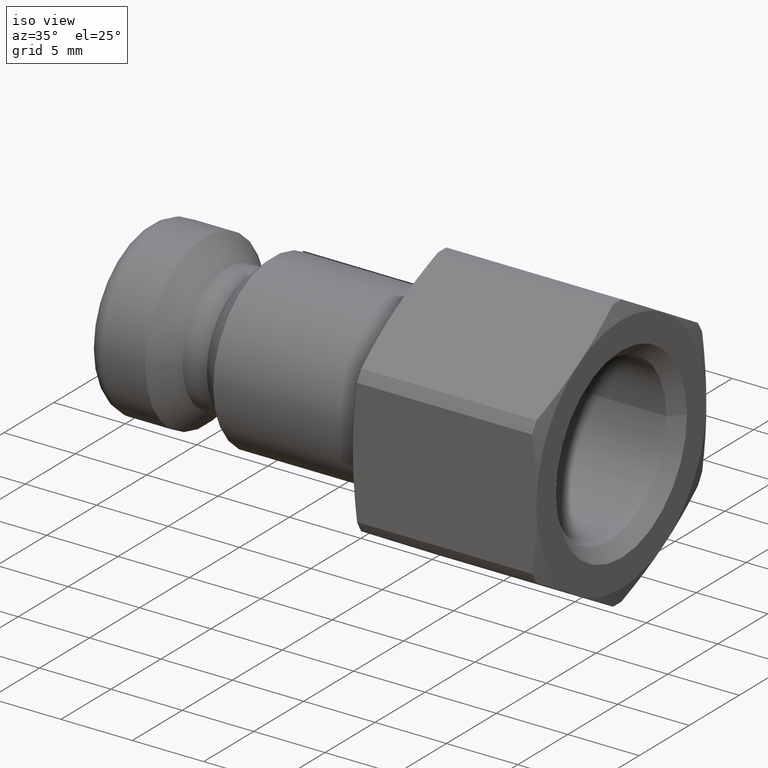
[diagram: clean part render]
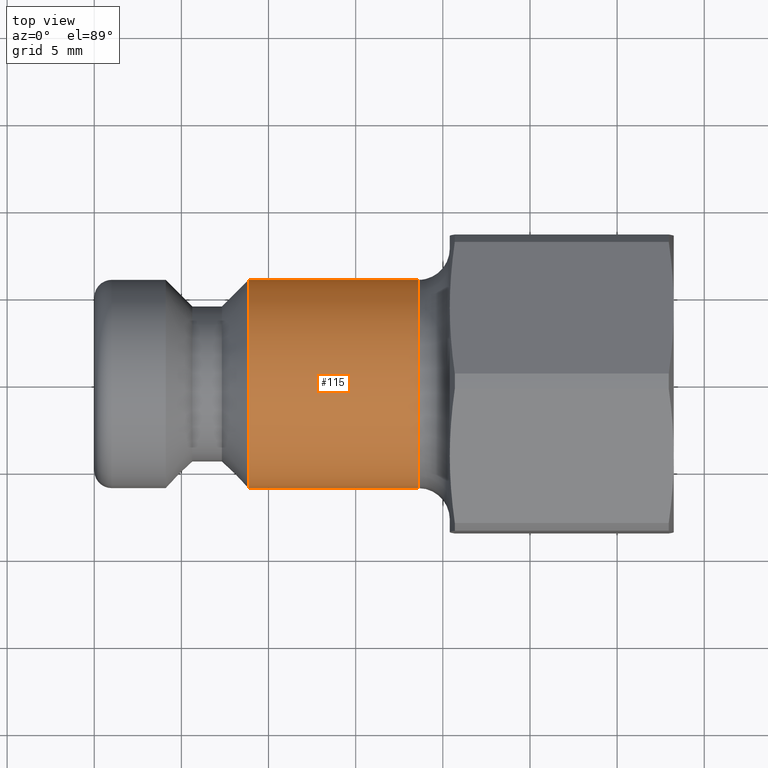
[diagram: tour spotlight — one face highlighted and labeled with its STEP entity id]
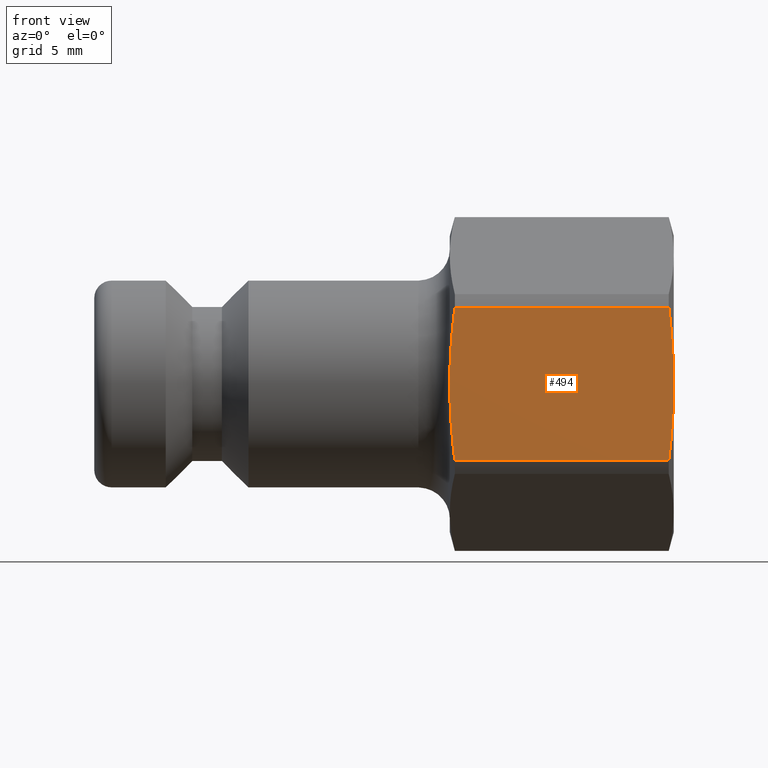
[diagram: tour spotlight — one face highlighted and labeled with its STEP entity id]
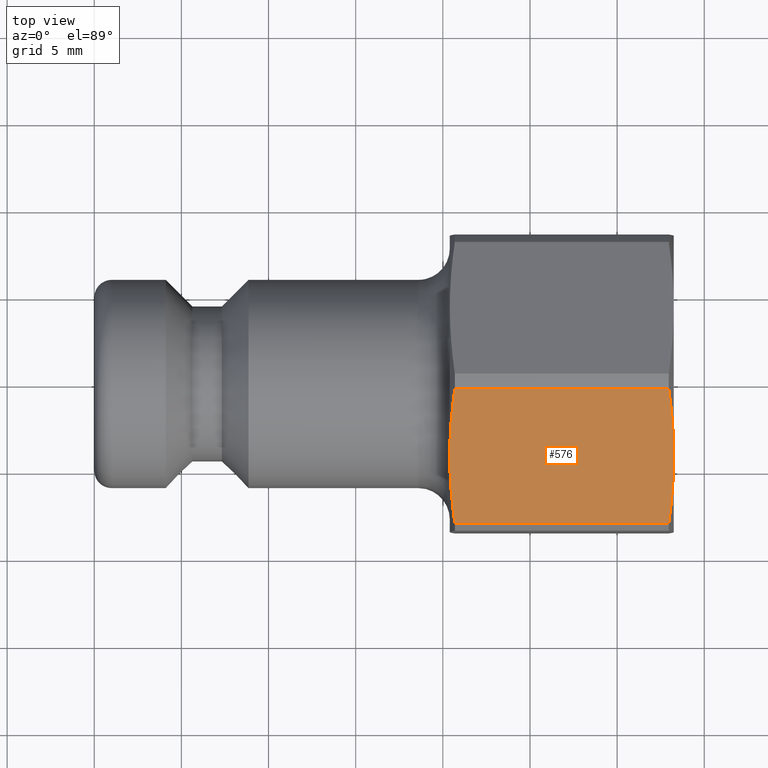
[diagram: tour spotlight — one face highlighted and labeled with its STEP entity id]
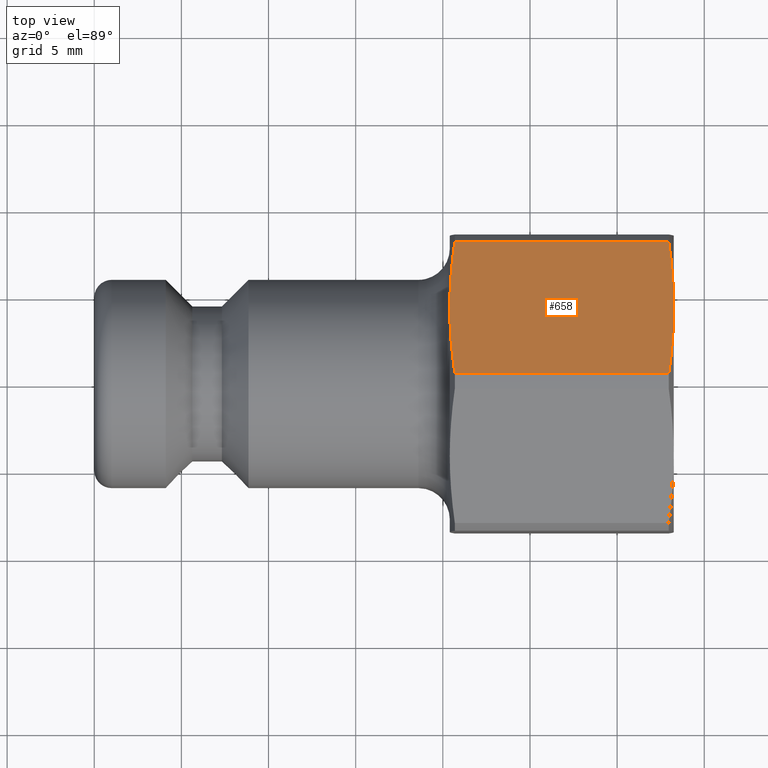
[diagram: tour spotlight — one face highlighted and labeled with its STEP entity id]
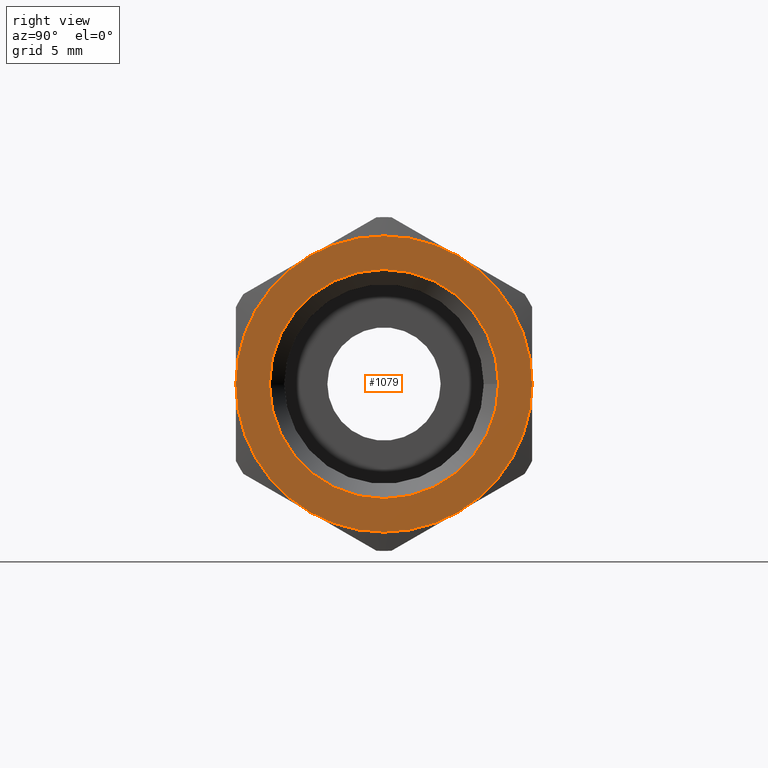
[diagram: tour spotlight — one face highlighted and labeled with its STEP entity id]
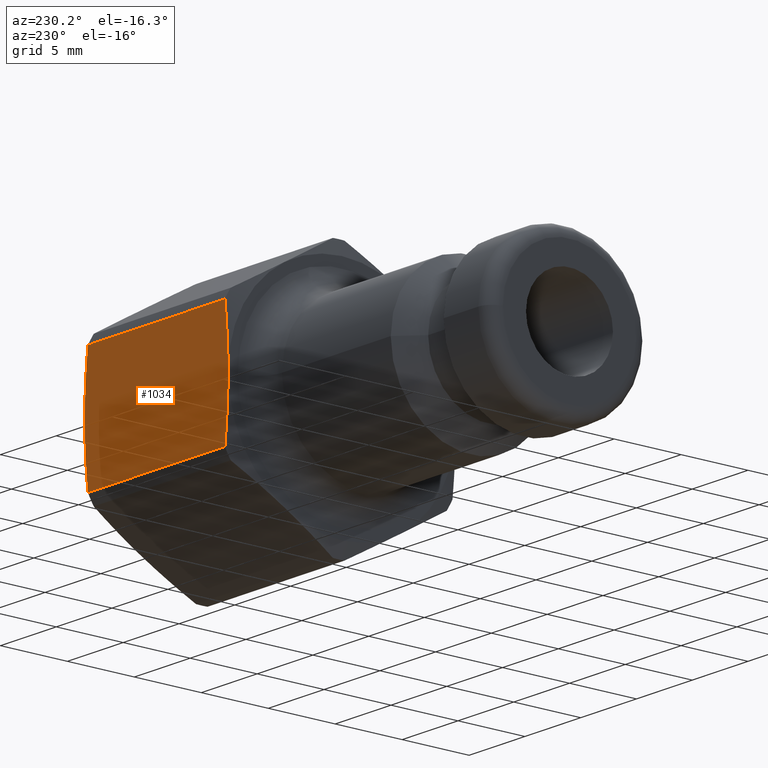
[diagram: tour spotlight — one face highlighted and labeled with its STEP entity id]
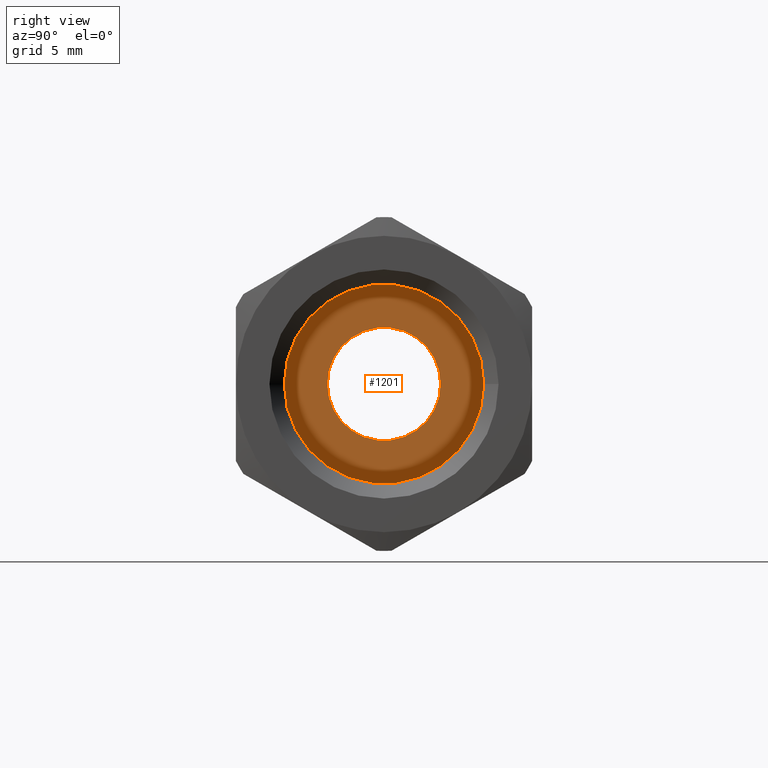
[diagram: tour spotlight — one face highlighted and labeled with its STEP entity id]
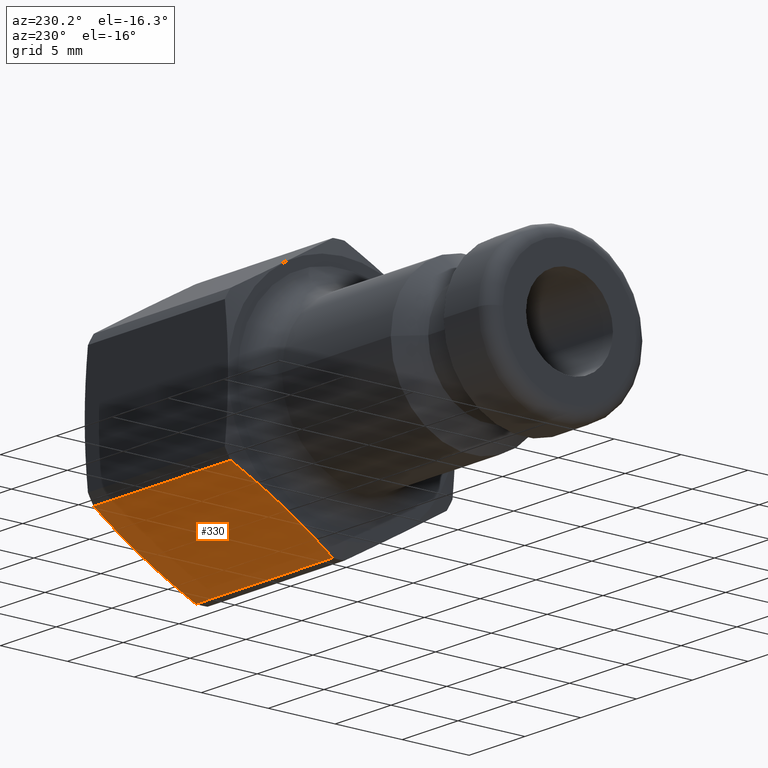
[diagram: tour spotlight — one face highlighted and labeled with its STEP entity id]
A machine part: a face-by-face anatomy tour. The part has 38 B-rep faces; the first image is the clean iso view, then the 8 largest visible faces are spotlighted one at a time (largest first), each with its STEP entity span.

Face 1 — top view, entity #115. In plain terms, the highlighted cylindrical surface (bore or boss wall) has radius 5.975 mm, axis along (1, 0, 0).
Definition (entity closure, byte-faithful):
#73=CARTESIAN_POINT('',(18.600000000000001,5.975000000000001,0.0));
#74=VERTEX_POINT('',#73);
#75=CARTESIAN_POINT('',(18.600000000000001,0.0,0.0));
#76=DIRECTION('',(1.0,0.0,0.0));
#77=DIRECTION('',(0.0,-1.0,0.0));
#78=AXIS2_PLACEMENT_3D('',#75,#76,#77);
#79=CIRCLE('',#78,5.975000000000001);
#80=EDGE_CURVE('',#74,#74,#79,.T.);
#96=CARTESIAN_POINT('',(14.625000000000000,0.0,0.0));
#97=DIRECTION('',(1.0,0.0,0.0));
#98=DIRECTION('',(0.0,1.0,0.0));
#99=AXIS2_PLACEMENT_3D('',#96,#97,#98);
#100=CYLINDRICAL_SURFACE('',#99,5.975000000000001);
#101=CARTESIAN_POINT('',(8.849999999999998,5.975000000000001,0.0));
#102=VERTEX_POINT('',#101);
#103=CARTESIAN_POINT('',(8.849999999999998,0.0,0.0));
#104=DIRECTION('',(1.0,0.0,0.0));
#105=DIRECTION('',(0.0,1.0,0.0));
#106=AXIS2_PLACEMENT_3D('',#103,#104,#105);
#107=CIRCLE('',#106,5.975000000000001);
#108=EDGE_CURVE('',#102,#102,#107,.T.);
#109=ORIENTED_EDGE('',*,*,#108,.T.);
#110=EDGE_LOOP('',(#109));
#111=FACE_OUTER_BOUND('',#110,.T.);
#112=ORIENTED_EDGE('',*,*,#80,.F.);
#113=EDGE_LOOP('',(#112));
#114=FACE_BOUND('',#113,.T.);
#115=ADVANCED_FACE('',(#111,#114),#100,.T.);

Face 2 — front view, entity #494. In plain terms, the highlighted planar face has unit normal (0, 1, 0).
Definition (entity closure, byte-faithful):
#150=CARTESIAN_POINT('',(20.399999999999999,-8.500000000000000,1.415534E-015));
#151=VERTEX_POINT('',#150);
#413=CARTESIAN_POINT('',(34.482762852840338,-8.500000000000000,1.110223E-015));
#414=DIRECTION('',(0.0,1.0,0.0));
#415=DIRECTION('',(0.0,0.0,1.0));
#416=AXIS2_PLACEMENT_3D('',#413,#414,#415);
#417=PLANE('',#416);
#418=CARTESIAN_POINT('',(20.688045381863454,-8.500000000000002,-4.408018262212622));
#419=VERTEX_POINT('',#418);
#420=CARTESIAN_POINT('',(20.688045381863454,-8.500000000000002,-4.408018262212659));
#421=CARTESIAN_POINT('',(20.400000000000009,-8.500000000000000,-2.072926983613210));
#422=CARTESIAN_POINT('',(20.400000000000006,-8.500000000000000,1.415534E-015));
#430=(BOUNDED_CURVE()B_SPLINE_CURVE(2,(#420,#421,#422),.UNSPECIFIED.,.F.,.U.)B_SPLINE_CURVE_WITH_KNOTS((3,3),(0.0,0.441955310884675),.UNSPECIFIED.)CURVE()GEOMETRIC_REPRESENTATION_ITEM()RATIONAL_B_SPLINE_CURVE((1.0,1.031133014754920,1.0))REPRESENTATION_ITEM(''));
#431=EDGE_CURVE('',#419,#151,#430,.T.);
#432=ORIENTED_EDGE('',*,*,#431,.F.);
#433=CARTESIAN_POINT('',(32.961954618136538,-8.500000000000002,-4.408018262212622));
#434=VERTEX_POINT('',#433);
#435=CARTESIAN_POINT('',(32.961954618136545,-8.500000000000002,-4.408018262212622));
#436=DIRECTION('',(-1.0,0.0,0.0));
#437=VECTOR('',#436,12.273909236273091);
#438=LINE('',#435,#437);
#439=EDGE_CURVE('',#434,#419,#438,.T.);
#440=ORIENTED_EDGE('',*,*,#439,.F.);
#441=CARTESIAN_POINT('',(33.250000000000000,-8.500000000000000,1.415534E-015));
#442=VERTEX_POINT('',#441);
#443=CARTESIAN_POINT('',(33.250000000000000,-8.500000000000000,1.415534E-015));
#444=CARTESIAN_POINT('',(33.250000000000000,-8.500000000000000,-2.072926983613113));
#445=CARTESIAN_POINT('',(32.961954618136538,-8.500000000000002,-4.408018262212622));
#453=(BOUNDED_CURVE()B_SPLINE_CURVE(2,(#443,#444,#445),.UNSPECIFIED.,.F.,.U.)B_SPLINE_CURVE_WITH_KNOTS((3,3),(0.441955310884671,0.883910621769342),.UNSPECIFIED.)CURVE()GEOMETRIC_REPRESENTATION_ITEM()RATIONAL_B_SPLINE_CURVE((1.0,1.031133014755003,1.0))REPRESENTATION_ITEM(''));
#454=EDGE_CURVE('',#442,#434,#453,.T.);
#455=ORIENTED_EDGE('',*,*,#454,.F.);
#456=CARTESIAN_POINT('',(32.961954618136538,-8.500000000000000,4.408018262212624));
#457=VERTEX_POINT('',#456);
#458=CARTESIAN_POINT('',(32.961954618136538,-8.500000000000000,4.408018262212624));
#459=CARTESIAN_POINT('',(33.250000000000000,-8.500000000000000,2.072926983613151));
#460=CARTESIAN_POINT('',(33.250000000000000,-8.500000000000000,1.415534E-015));
#468=(BOUNDED_CURVE()B_SPLINE_CURVE(2,(#458,#459,#460),.UNSPECIFIED.,.F.,.U.)B_SPLINE_CURVE_WITH_KNOTS((3,3),(0.0,0.441955310884671),.UNSPECIFIED.)CURVE()GEOMETRIC_REPRESENTATION_ITEM()RATIONAL_B_SPLINE_CURVE((1.0,1.031133014754911,1.0))REPRESENTATION_ITEM(''));
#469=EDGE_CURVE('',#457,#442,#468,.T.);
#470=ORIENTED_EDGE('',*,*,#469,.F.);
#471=CARTESIAN_POINT('',(20.688045381863454,-8.500000000000000,4.408018262212624));
#472=VERTEX_POINT('',#471);
#473=CARTESIAN_POINT('',(20.688045381863454,-8.500000000000000,4.408018262212624));
#474=DIRECTION('',(1.0,0.0,0.0));
#475=VECTOR('',#474,12.273909236273091);
#476=LINE('',#473,#475);
#477=EDGE_CURVE('',#472,#457,#476,.T.);
#478=ORIENTED_EDGE('',*,*,#477,.F.);
#479=CARTESIAN_POINT('',(20.400000000000006,-8.500000000000000,1.415534E-015));
#480=CARTESIAN_POINT('',(20.399999999999999,-8.500000000000000,2.072926983613213));
#481=CARTESIAN_POINT('',(20.688045381863454,-8.500000000000000,4.408018262212662));
#489=(BOUNDED_CURVE()B_SPLINE_CURVE(2,(#479,#480,#481),.UNSPECIFIED.,.F.,.U.)B_SPLINE_CURVE_WITH_KNOTS((3,3),(0.441955310884675,0.883910621769349),.UNSPECIFIED.)CURVE()GEOMETRIC_REPRESENTATION_ITEM()RATIONAL_B_SPLINE_CURVE((1.0,1.031133014754911,1.0))REPRESENTATION_ITEM(''));
#490=EDGE_CURVE('',#151,#472,#489,.T.);
#491=ORIENTED_EDGE('',*,*,#490,.F.);
#492=EDGE_LOOP('',(#432,#440,#455,#470,#478,#491));
#493=FACE_OUTER_BOUND('',#492,.T.);
#494=ADVANCED_FACE('',(#493),#417,.F.);

Face 3 — top view, entity #576. In plain terms, the highlighted planar face has unit normal (0, 0.5, -0.866).
Definition (entity closure, byte-faithful):
#159=CARTESIAN_POINT('',(20.399999999999999,-4.249999999999998,7.361215932167731));
#160=VERTEX_POINT('',#159);
#495=CARTESIAN_POINT('',(34.482762852840338,-4.249999999999998,7.361215932167731));
#496=DIRECTION('',(0.0,0.500000000000000,-0.866025403784439));
#497=DIRECTION('',(0.0,0.866025403784439,0.500000000000000));
#498=AXIS2_PLACEMENT_3D('',#495,#496,#497);
#499=PLANE('',#498);
#500=CARTESIAN_POINT('',(20.688045381863454,-8.067455795421864,5.157206801061420));
#501=VERTEX_POINT('',#500);
#502=CARTESIAN_POINT('',(20.688045381863454,-8.067455795421896,5.157206801061403));
#503=CARTESIAN_POINT('',(20.400000000000009,-6.045207427999292,6.324752440361124));
#504=CARTESIAN_POINT('',(20.400000000000006,-4.249999999999998,7.361215932167731));
#512=(BOUNDED_CURVE()B_SPLINE_CURVE(2,(#502,#503,#504),.UNSPECIFIED.,.F.,.U.)B_SPLINE_CURVE_WITH_KNOTS((3,3),(0.0,0.441955310884674),.UNSPECIFIED.)CURVE()GEOMETRIC_REPRESENTATION_ITEM()RATIONAL_B_SPLINE_CURVE((1.0,1.031133014754906,1.0))REPRESENTATION_ITEM(''));
#513=EDGE_CURVE('',#501,#160,#512,.T.);
#514=ORIENTED_EDGE('',*,*,#513,.F.);
#515=CARTESIAN_POINT('',(32.961954618136538,-8.067455795421864,5.157206801061420));
#516=VERTEX_POINT('',#515);
#517=CARTESIAN_POINT('',(32.961954618136545,-8.067455795421864,5.157206801061420));
#518=DIRECTION('',(-1.0,0.0,0.0));
#519=VECTOR('',#518,12.273909236273091);
#520=LINE('',#517,#519);
#521=EDGE_CURVE('',#516,#501,#520,.T.);
#522=ORIENTED_EDGE('',*,*,#521,.F.);
#523=CARTESIAN_POINT('',(33.250000000000000,-4.249999999999998,7.361215932167731));
#524=VERTEX_POINT('',#523);
#525=CARTESIAN_POINT('',(33.250000000000000,-4.249999999999998,7.361215932167731));
#526=CARTESIAN_POINT('',(33.250000000000000,-6.045207427999228,6.324752440361161));
#527=CARTESIAN_POINT('',(32.961954618136538,-8.067455795421864,5.157206801061420));
#535=(BOUNDED_CURVE()B_SPLINE_CURVE(2,(#525,#526,#527),.UNSPECIFIED.,.F.,.U.)B_SPLINE_CURVE_WITH_KNOTS((3,3),(0.441955310884671,0.883910621769342),.UNSPECIFIED.)CURVE()GEOMETRIC_REPRESENTATION_ITEM()RATIONAL_B_SPLINE_CURVE((1.0,1.031133014754920,1.0))REPRESENTATION_ITEM(''));
#536=EDGE_CURVE('',#524,#516,#535,.T.);
#537=ORIENTED_EDGE('',*,*,#536,.F.);
#538=CARTESIAN_POINT('',(32.961954618136538,-0.432544204578131,9.565225063274042));
#539=VERTEX_POINT('',#538);
#540=CARTESIAN_POINT('',(32.961954618136538,-0.432544204578132,9.565225063274042));
#541=CARTESIAN_POINT('',(33.250000000000000,-2.454792572000761,8.397679423974305));
#542=CARTESIAN_POINT('',(33.250000000000000,-4.249999999999998,7.361215932167731));
#550=(BOUNDED_CURVE()B_SPLINE_CURVE(2,(#540,#541,#542),.UNSPECIFIED.,.F.,.U.)B_SPLINE_CURVE_WITH_KNOTS((3,3),(0.0,0.441955310884671),.UNSPECIFIED.)CURVE()GEOMETRIC_REPRESENTATION_ITEM()RATIONAL_B_SPLINE_CURVE((1.0,1.031133014754915,1.0))REPRESENTATION_ITEM(''));
#551=EDGE_CURVE('',#539,#524,#550,.T.);
#552=ORIENTED_EDGE('',*,*,#551,.F.);
#553=CARTESIAN_POINT('',(20.688045381863454,-0.432544204578131,9.565225063274042));
#554=VERTEX_POINT('',#553);
#555=CARTESIAN_POINT('',(20.688045381863454,-0.432544204578131,9.565225063274042));
#556=DIRECTION('',(1.0,0.0,0.0));
#557=VECTOR('',#556,12.273909236273091);
#558=LINE('',#555,#557);
#559=EDGE_CURVE('',#554,#539,#558,.T.);
#560=ORIENTED_EDGE('',*,*,#559,.F.);
#561=CARTESIAN_POINT('',(20.400000000000006,-4.249999999999998,7.361215932167731));
#562=CARTESIAN_POINT('',(20.399999999999999,-2.454792572000705,8.397679423974338));
#563=CARTESIAN_POINT('',(20.688045381863454,-0.432544204578101,9.565225063274060));
#571=(BOUNDED_CURVE()B_SPLINE_CURVE(2,(#561,#562,#563),.UNSPECIFIED.,.F.,.U.)B_SPLINE_CURVE_WITH_KNOTS((3,3),(0.441955310884674,0.883910621769349),.UNSPECIFIED.)CURVE()GEOMETRIC_REPRESENTATION_ITEM()RATIONAL_B_SPLINE_CURVE((1.0,1.031133014754906,1.0))REPRESENTATION_ITEM(''));
#572=EDGE_CURVE('',#160,#554,#571,.T.);
#573=ORIENTED_EDGE('',*,*,#572,.F.);
#574=EDGE_LOOP('',(#514,#522,#537,#552,#560,#573));
#575=FACE_OUTER_BOUND('',#574,.T.);
#576=ADVANCED_FACE('',(#575),#499,.F.);

Face 4 — top view, entity #658. In plain terms, the highlighted planar face has unit normal (0, -0.5, -0.866).
Definition (entity closure, byte-faithful):
#123=CARTESIAN_POINT('',(20.399999999999999,4.250000000000001,7.361215932167728));
#124=VERTEX_POINT('',#123);
#577=CARTESIAN_POINT('',(34.482762852840338,4.250000000000002,7.361215932167728));
#578=DIRECTION('',(0.0,-0.500000000000000,-0.866025403784439));
#579=DIRECTION('',(0.0,0.866025403784439,-0.500000000000000));
#580=AXIS2_PLACEMENT_3D('',#577,#578,#579);
#581=PLANE('',#580);
#582=CARTESIAN_POINT('',(20.688045381863454,0.432544204578135,9.565225063274042));
#583=VERTEX_POINT('',#582);
#584=CARTESIAN_POINT('',(20.688045381863454,0.432544204578103,9.565225063274060));
#585=CARTESIAN_POINT('',(20.400000000000009,2.454792572000702,8.397679423974340));
#586=CARTESIAN_POINT('',(20.400000000000006,4.250000000000002,7.361215932167728));
#594=(BOUNDED_CURVE()B_SPLINE_CURVE(2,(#584,#585,#586),.UNSPECIFIED.,.F.,.U.)B_SPLINE_CURVE_WITH_KNOTS((3,3),(0.0,0.441955310884675),.UNSPECIFIED.)CURVE()GEOMETRIC_REPRESENTATION_ITEM()RATIONAL_B_SPLINE_CURVE((1.0,1.031133014754910,1.0))REPRESENTATION_ITEM(''));
#595=EDGE_CURVE('',#583,#124,#594,.T.);
#596=ORIENTED_EDGE('',*,*,#595,.F.);
#597=CARTESIAN_POINT('',(32.961954618136538,0.432544204578135,9.565225063274042));
#598=VERTEX_POINT('',#597);
#599=CARTESIAN_POINT('',(32.961954618136545,0.432544204578135,9.565225063274042));
#600=DIRECTION('',(-1.0,0.0,0.0));
#601=VECTOR('',#600,12.273909236273091);
#602=LINE('',#599,#601);
#603=EDGE_CURVE('',#598,#583,#602,.T.);
#604=ORIENTED_EDGE('',*,*,#603,.F.);
#605=CARTESIAN_POINT('',(33.250000000000000,4.250000000000001,7.361215932167728));
#606=VERTEX_POINT('',#605);
#607=CARTESIAN_POINT('',(33.250000000000000,4.250000000000001,7.361215932167728));
#608=CARTESIAN_POINT('',(33.250000000000000,2.454792572000771,8.397679423974299));
#609=CARTESIAN_POINT('',(32.961954618136538,0.432544204578134,9.565225063274042));
#617=(BOUNDED_CURVE()B_SPLINE_CURVE(2,(#607,#608,#609),.UNSPECIFIED.,.F.,.U.)B_SPLINE_CURVE_WITH_KNOTS((3,3),(0.441955310884671,0.883910621769342),.UNSPECIFIED.)CURVE()GEOMETRIC_REPRESENTATION_ITEM()RATIONAL_B_SPLINE_CURVE((1.0,1.031133014754915,1.0))REPRESENTATION_ITEM(''));
#618=EDGE_CURVE('',#606,#598,#617,.T.);
#619=ORIENTED_EDGE('',*,*,#618,.F.);
#620=CARTESIAN_POINT('',(32.961954618136538,8.067455795421868,5.157206801061416));
#621=VERTEX_POINT('',#620);
#622=CARTESIAN_POINT('',(32.961954618136538,8.067455795421870,5.157206801061415));
#623=CARTESIAN_POINT('',(33.250000000000000,6.045207427999232,6.324752440361157));
#624=CARTESIAN_POINT('',(33.250000000000000,4.250000000000001,7.361215932167728));
#632=(BOUNDED_CURVE()B_SPLINE_CURVE(2,(#622,#623,#624),.UNSPECIFIED.,.F.,.U.)B_SPLINE_CURVE_WITH_KNOTS((3,3),(0.0,0.441955310884671),.UNSPECIFIED.)CURVE()GEOMETRIC_REPRESENTATION_ITEM()RATIONAL_B_SPLINE_CURVE((1.0,1.031133014754910,1.0))REPRESENTATION_ITEM(''));
#633=EDGE_CURVE('',#621,#606,#632,.T.);
#634=ORIENTED_EDGE('',*,*,#633,.F.);
#635=CARTESIAN_POINT('',(20.688045381863454,8.067455795421868,5.157206801061416));
#636=VERTEX_POINT('',#635);
#637=CARTESIAN_POINT('',(20.688045381863454,8.067455795421868,5.157206801061416));
#638=DIRECTION('',(1.0,0.0,0.0));
#639=VECTOR('',#638,12.273909236273091);
#640=LINE('',#637,#639);
#641=EDGE_CURVE('',#636,#621,#640,.T.);
#642=ORIENTED_EDGE('',*,*,#641,.F.);
#643=CARTESIAN_POINT('',(20.400000000000006,4.250000000000002,7.361215932167728));
#644=CARTESIAN_POINT('',(20.399999999999999,6.045207427999269,6.324752440361136));
#645=CARTESIAN_POINT('',(20.688045381863454,8.067455795421900,5.157206801061398));
#653=(BOUNDED_CURVE()B_SPLINE_CURVE(2,(#643,#644,#645),.UNSPECIFIED.,.F.,.U.)B_SPLINE_CURVE_WITH_KNOTS((3,3),(0.441955310884675,0.883910621769349),.UNSPECIFIED.)CURVE()GEOMETRIC_REPRESENTATION_ITEM()RATIONAL_B_SPLINE_CURVE((1.0,1.031133014754854,1.0))REPRESENTATION_ITEM(''));
#654=EDGE_CURVE('',#124,#636,#653,.T.);
#655=ORIENTED_EDGE('',*,*,#654,.F.);
#656=EDGE_LOOP('',(#596,#604,#619,#634,#642,#655));
#657=FACE_OUTER_BOUND('',#656,.T.);
#658=ADVANCED_FACE('',(#657),#581,.F.);

Face 5 — right view, entity #1079. In plain terms, the highlighted planar face has unit normal (1, 0, 0).
Definition (entity closure, byte-faithful):
#277=CARTESIAN_POINT('',(33.250000000000000,4.249999999999994,-7.361215932167733));
#278=VERTEX_POINT('',#277);
#359=CARTESIAN_POINT('',(33.250000000000000,-4.250000000000004,-7.361215932167728));
#360=VERTEX_POINT('',#359);
#441=CARTESIAN_POINT('',(33.250000000000000,-8.500000000000000,1.415534E-015));
#442=VERTEX_POINT('',#441);
#523=CARTESIAN_POINT('',(33.250000000000000,-4.249999999999998,7.361215932167731));
#524=VERTEX_POINT('',#523);
#605=CARTESIAN_POINT('',(33.250000000000000,4.250000000000001,7.361215932167728));
#606=VERTEX_POINT('',#605);
#665=CARTESIAN_POINT('',(33.250000000000000,8.500000000000000,0.0));
#666=VERTEX_POINT('',#665);
#667=CARTESIAN_POINT('',(33.250000000000000,0.0,0.0));
#668=DIRECTION('',(1.0,0.0,0.0));
#669=DIRECTION('',(0.0,1.0,0.0));
#670=AXIS2_PLACEMENT_3D('',#667,#668,#669);
#671=CIRCLE('',#670,8.500000000000000);
#672=EDGE_CURVE('',#666,#606,#671,.T.);
#705=CARTESIAN_POINT('',(33.250000000000000,0.0,0.0));
#706=DIRECTION('',(1.0,0.0,0.0));
#707=DIRECTION('',(0.0,1.0,0.0));
#708=AXIS2_PLACEMENT_3D('',#705,#706,#707);
#709=CIRCLE('',#708,8.500000000000000);
#710=EDGE_CURVE('',#606,#524,#709,.T.);
#729=CARTESIAN_POINT('',(33.250000000000000,0.0,0.0));
#730=DIRECTION('',(1.0,0.0,0.0));
#731=DIRECTION('',(0.0,1.0,0.0));
#732=AXIS2_PLACEMENT_3D('',#729,#730,#731);
#733=CIRCLE('',#732,8.500000000000000);
#734=EDGE_CURVE('',#524,#442,#733,.T.);
#753=CARTESIAN_POINT('',(33.250000000000000,0.0,0.0));
#754=DIRECTION('',(1.0,0.0,0.0));
#755=DIRECTION('',(0.0,1.0,0.0));
#756=AXIS2_PLACEMENT_3D('',#753,#754,#755);
#757=CIRCLE('',#756,8.500000000000000);
#758=EDGE_CURVE('',#442,#360,#757,.T.);
#799=CARTESIAN_POINT('',(33.250000000000000,0.0,0.0));
#800=DIRECTION('',(1.0,0.0,0.0));
#801=DIRECTION('',(0.0,1.0,0.0));
#802=AXIS2_PLACEMENT_3D('',#799,#800,#801);
#803=CIRCLE('',#802,8.500000000000000);
#804=EDGE_CURVE('',#278,#666,#803,.T.);
#815=CARTESIAN_POINT('',(33.250000000000000,0.0,0.0));
#816=DIRECTION('',(1.0,0.0,0.0));
#817=DIRECTION('',(0.0,1.0,0.0));
#818=AXIS2_PLACEMENT_3D('',#815,#816,#817);
#819=CIRCLE('',#818,8.500000000000000);
#820=EDGE_CURVE('',#360,#278,#819,.T.);
#1040=CARTESIAN_POINT('',(33.250000000000000,6.572500000000000,8.048991E-016));
#1041=VERTEX_POINT('',#1040);
#1042=CARTESIAN_POINT('',(33.250000000000000,0.0,0.0));
#1043=DIRECTION('',(1.0,0.0,0.0));
#1044=DIRECTION('',(0.0,-1.0,0.0));
#1045=AXIS2_PLACEMENT_3D('',#1042,#1043,#1044);
#1046=CIRCLE('',#1045,6.572500000000000);
#1047=EDGE_CURVE('',#1041,#1041,#1046,.T.);
#1063=CARTESIAN_POINT('',(33.250000000000000,7.111250000000000,0.0));
#1064=DIRECTION('',(1.0,0.0,0.0));
#1065=DIRECTION('',(0.0,0.0,-1.0));
#1066=AXIS2_PLACEMENT_3D('',#1063,#1064,#1065);
#1067=PLANE('',#1066);
#1068=ORIENTED_EDGE('',*,*,#672,.T.);
#1069=ORIENTED_EDGE('',*,*,#710,.T.);
#1070=ORIENTED_EDGE('',*,*,#734,.T.);
#1071=ORIENTED_EDGE('',*,*,#758,.T.);
#1072=ORIENTED_EDGE('',*,*,#820,.T.);
#1073=ORIENTED_EDGE('',*,*,#804,.T.);
#1074=EDGE_LOOP('',(#1068,#1069,#1070,#1071,#1072,#1073));
#1075=FACE_OUTER_BOUND('',#1074,.T.);
#1076=ORIENTED_EDGE('',*,*,#1047,.F.);
#1077=EDGE_LOOP('',(#1076));
#1078=FACE_BOUND('',#1077,.T.);
#1079=ADVANCED_FACE('',(#1075,#1078),#1067,.T.);

Face 6 — auxiliary view, entity #1034. In plain terms, the highlighted planar face has unit normal (0, -1, 0).
Definition (entity closure, byte-faithful):
#121=CARTESIAN_POINT('',(20.399999999999999,8.500000000000000,0.0));
#122=VERTEX_POINT('',#121);
#665=CARTESIAN_POINT('',(33.250000000000000,8.500000000000000,0.0));
#666=VERTEX_POINT('',#665);
#674=CARTESIAN_POINT('',(32.961954618136538,8.500000000000000,4.408018262212623));
#675=VERTEX_POINT('',#674);
#676=CARTESIAN_POINT('',(33.250000000000000,8.500000000000000,0.0));
#677=CARTESIAN_POINT('',(33.250000000000000,8.500000000000000,2.072926983613114));
#678=CARTESIAN_POINT('',(32.961954618136538,8.500000000000000,4.408018262212623));
#686=(BOUNDED_CURVE()B_SPLINE_CURVE(2,(#676,#677,#678),.UNSPECIFIED.,.F.,.U.)B_SPLINE_CURVE_WITH_KNOTS((3,3),(0.441955310884671,0.883910621769342),.UNSPECIFIED.)CURVE()GEOMETRIC_REPRESENTATION_ITEM()RATIONAL_B_SPLINE_CURVE((1.0,1.031133014755002,1.0))REPRESENTATION_ITEM(''));
#687=EDGE_CURVE('',#666,#675,#686,.T.);
#777=CARTESIAN_POINT('',(32.961954618136538,8.500000000000000,-4.408018262212623));
#778=VERTEX_POINT('',#777);
#786=CARTESIAN_POINT('',(32.961954618136538,8.500000000000000,-4.408018262212623));
#787=CARTESIAN_POINT('',(33.250000000000000,8.500000000000000,-2.072926983613114));
#788=CARTESIAN_POINT('',(33.250000000000000,8.500000000000000,0.0));
#796=(BOUNDED_CURVE()B_SPLINE_CURVE(2,(#786,#787,#788),.UNSPECIFIED.,.F.,.U.)B_SPLINE_CURVE_WITH_KNOTS((3,3),(0.0,0.441955310884671),.UNSPECIFIED.)CURVE()GEOMETRIC_REPRESENTATION_ITEM()RATIONAL_B_SPLINE_CURVE((1.0,1.031133014755002,1.0))REPRESENTATION_ITEM(''));
#797=EDGE_CURVE('',#778,#666,#796,.T.);
#839=CARTESIAN_POINT('',(20.688045381863454,8.500000000000000,-4.408018262212623));
#840=VERTEX_POINT('',#839);
#848=CARTESIAN_POINT('',(20.688045381863454,8.500000000000000,-4.408018262212623));
#849=DIRECTION('',(1.0,0.0,0.0));
#850=VECTOR('',#849,12.273909236273091);
#851=LINE('',#848,#850);
#852=EDGE_CURVE('',#840,#778,#851,.T.);
#865=CARTESIAN_POINT('',(20.688045381863454,8.500000000000000,4.408018262212623));
#866=VERTEX_POINT('',#865);
#867=CARTESIAN_POINT('',(32.961954618136545,8.500000000000000,4.408018262212623));
#868=DIRECTION('',(-1.0,0.0,0.0));
#869=VECTOR('',#868,12.273909236273091);
#870=LINE('',#867,#869);
#871=EDGE_CURVE('',#675,#866,#870,.T.);
#944=CARTESIAN_POINT('',(20.400000000000006,8.500000000000000,0.0));
#945=CARTESIAN_POINT('',(20.399999999999999,8.500000000000000,-2.072926983613211));
#946=CARTESIAN_POINT('',(20.688045381863454,8.500000000000000,-4.408018262212660));
#954=(BOUNDED_CURVE()B_SPLINE_CURVE(2,(#944,#945,#946),.UNSPECIFIED.,.F.,.U.)B_SPLINE_CURVE_WITH_KNOTS((3,3),(0.441955310884675,0.883910621769349),.UNSPECIFIED.)CURVE()GEOMETRIC_REPRESENTATION_ITEM()RATIONAL_B_SPLINE_CURVE((1.0,1.031133014754914,1.0))REPRESENTATION_ITEM(''));
#955=EDGE_CURVE('',#122,#840,#954,.T.);
#968=CARTESIAN_POINT('',(20.688045381863454,8.500000000000000,4.408018262212660));
#969=CARTESIAN_POINT('',(20.400000000000009,8.500000000000000,2.072926983613211));
#970=CARTESIAN_POINT('',(20.400000000000006,8.500000000000000,0.0));
#978=(BOUNDED_CURVE()B_SPLINE_CURVE(2,(#968,#969,#970),.UNSPECIFIED.,.F.,.U.)B_SPLINE_CURVE_WITH_KNOTS((3,3),(0.0,0.441955310884675),.UNSPECIFIED.)CURVE()GEOMETRIC_REPRESENTATION_ITEM()RATIONAL_B_SPLINE_CURVE((1.0,1.031133014754914,1.0))REPRESENTATION_ITEM(''));
#979=EDGE_CURVE('',#866,#122,#978,.T.);
#1021=CARTESIAN_POINT('',(34.482762852840338,8.500000000000000,0.0));
#1022=DIRECTION('',(0.0,-1.0,0.0));
#1023=DIRECTION('',(0.0,0.0,-1.0));
#1024=AXIS2_PLACEMENT_3D('',#1021,#1022,#1023);
#1025=PLANE('',#1024);
#1026=ORIENTED_EDGE('',*,*,#979,.F.);
#1027=ORIENTED_EDGE('',*,*,#871,.F.);
#1028=ORIENTED_EDGE('',*,*,#687,.F.);
#1029=ORIENTED_EDGE('',*,*,#797,.F.);
#1030=ORIENTED_EDGE('',*,*,#852,.F.);
#1031=ORIENTED_EDGE('',*,*,#955,.F.);
#1032=EDGE_LOOP('',(#1026,#1027,#1028,#1029,#1030,#1031));
#1033=FACE_OUTER_BOUND('',#1032,.T.);
#1034=ADVANCED_FACE('',(#1033),#1025,.F.);

Face 7 — right view, entity #1201. In plain terms, the highlighted planar face has unit normal (1, 0, 0).
Definition (entity closure, byte-faithful):
#1085=CARTESIAN_POINT('',(24.250000000000004,5.722500000000000,0.0));
#1086=VERTEX_POINT('',#1085);
#1087=CARTESIAN_POINT('',(24.250000000000004,0.0,0.0));
#1088=DIRECTION('',(1.0,0.0,0.0));
#1089=DIRECTION('',(0.0,1.0,0.0));
#1090=AXIS2_PLACEMENT_3D('',#1087,#1088,#1089);
#1091=CIRCLE('',#1090,5.722500000000000);
#1092=EDGE_CURVE('',#1086,#1086,#1091,.T.);
#1182=CARTESIAN_POINT('',(24.250000000000004,4.486250000000001,0.0));
#1183=DIRECTION('',(1.0,0.0,0.0));
#1184=DIRECTION('',(0.0,0.0,-1.0));
#1185=AXIS2_PLACEMENT_3D('',#1182,#1183,#1184);
#1186=PLANE('',#1185);
#1187=ORIENTED_EDGE('',*,*,#1092,.T.);
#1188=EDGE_LOOP('',(#1187));
#1189=FACE_OUTER_BOUND('',#1188,.T.);
#1190=CARTESIAN_POINT('',(24.250000000000004,3.250000000000002,0.0));
#1191=VERTEX_POINT('',#1190);
#1192=CARTESIAN_POINT('',(24.250000000000004,0.0,0.0));
#1193=DIRECTION('',(1.0,0.0,0.0));
#1194=DIRECTION('',(0.0,1.0,0.0));
#1195=AXIS2_PLACEMENT_3D('',#1192,#1193,#1194);
#1196=CIRCLE('',#1195,3.250000000000002);
#1197=EDGE_CURVE('',#1191,#1191,#1196,.T.);
#1198=ORIENTED_EDGE('',*,*,#1197,.F.);
#1199=EDGE_LOOP('',(#1198));
#1200=FACE_BOUND('',#1199,.T.);
#1201=ADVANCED_FACE('',(#1189,#1200),#1186,.T.);

Face 8 — auxiliary view, entity #330. In plain terms, the highlighted planar face has unit normal (0, -0.5, 0.866).
Definition (entity closure, byte-faithful):
#132=CARTESIAN_POINT('',(20.399999999999999,4.249999999999994,-7.361215932167733));
#133=VERTEX_POINT('',#132);
#249=CARTESIAN_POINT('',(34.482762852840338,4.249999999999995,-7.361215932167733));
#250=DIRECTION('',(0.0,-0.499999999999999,0.866025403784439));
#251=DIRECTION('',(0.0,-0.866025403784439,-0.499999999999999));
#252=AXIS2_PLACEMENT_3D('',#249,#250,#251);
#253=PLANE('',#252);
#254=CARTESIAN_POINT('',(20.688045381863454,8.067455795421862,-5.157206801061425));
#255=VERTEX_POINT('',#254);
#256=CARTESIAN_POINT('',(20.688045381863454,8.067455795421894,-5.157206801061407));
#257=CARTESIAN_POINT('',(20.400000000000009,6.045207427999298,-6.324752440361122));
#258=CARTESIAN_POINT('',(20.400000000000006,4.249999999999995,-7.361215932167734));
#266=(BOUNDED_CURVE()B_SPLINE_CURVE(2,(#256,#257,#258),.UNSPECIFIED.,.F.,.U.)B_SPLINE_CURVE_WITH_KNOTS((3,3),(0.0,0.441955310884675),.UNSPECIFIED.)CURVE()GEOMETRIC_REPRESENTATION_ITEM()RATIONAL_B_SPLINE_CURVE((1.0,1.031133014754900,1.0))REPRESENTATION_ITEM(''));
#267=EDGE_CURVE('',#255,#133,#266,.T.);
#268=ORIENTED_EDGE('',*,*,#267,.F.);
#269=CARTESIAN_POINT('',(32.961954618136538,8.067455795421862,-5.157206801061425));
#270=VERTEX_POINT('',#269);
#271=CARTESIAN_POINT('',(32.961954618136545,8.067455795421862,-5.157206801061425));
#272=DIRECTION('',(-1.0,0.0,0.0));
#273=VECTOR('',#272,12.273909236273091);
#274=LINE('',#271,#273);
#275=EDGE_CURVE('',#270,#255,#274,.T.);
#276=ORIENTED_EDGE('',*,*,#275,.F.);
#277=CARTESIAN_POINT('',(33.250000000000000,4.249999999999994,-7.361215932167733));
#278=VERTEX_POINT('',#277);
#279=CARTESIAN_POINT('',(33.250000000000000,4.249999999999994,-7.361215932167734));
#280=CARTESIAN_POINT('',(33.250000000000000,6.045207427999223,-6.324752440361166));
#281=CARTESIAN_POINT('',(32.961954618136538,8.067455795421861,-5.157206801061427));
#289=(BOUNDED_CURVE()B_SPLINE_CURVE(2,(#279,#280,#281),.UNSPECIFIED.,.F.,.U.)B_SPLINE_CURVE_WITH_KNOTS((3,3),(0.441955310884671,0.883910621769341),.UNSPECIFIED.)CURVE()GEOMETRIC_REPRESENTATION_ITEM()RATIONAL_B_SPLINE_CURVE((1.0,1.031133014754903,1.0))REPRESENTATION_ITEM(''));
#290=EDGE_CURVE('',#278,#270,#289,.T.);
#291=ORIENTED_EDGE('',*,*,#290,.F.);
#292=CARTESIAN_POINT('',(32.961954618136538,0.432544204578125,-9.565225063274042));
#293=VERTEX_POINT('',#292);
#294=CARTESIAN_POINT('',(32.961954618136538,0.432544204578128,-9.565225063274042));
#295=CARTESIAN_POINT('',(33.250000000000000,2.454792572000764,-8.397679423974303));
#296=CARTESIAN_POINT('',(33.250000000000000,4.249999999999994,-7.361215932167734));
#304=(BOUNDED_CURVE()B_SPLINE_CURVE(2,(#294,#295,#296),.UNSPECIFIED.,.F.,.U.)B_SPLINE_CURVE_WITH_KNOTS((3,3),(0.0,0.441955310884671),.UNSPECIFIED.)CURVE()GEOMETRIC_REPRESENTATION_ITEM()RATIONAL_B_SPLINE_CURVE((1.0,1.031133014754924,1.0))REPRESENTATION_ITEM(''));
#305=EDGE_CURVE('',#293,#278,#304,.T.);
#306=ORIENTED_EDGE('',*,*,#305,.F.);
#307=CARTESIAN_POINT('',(20.688045381863454,0.432544204578125,-9.565225063274042));
#308=VERTEX_POINT('',#307);
#309=CARTESIAN_POINT('',(20.688045381863454,0.432544204578125,-9.565225063274042));
#310=DIRECTION('',(1.0,0.0,0.0));
#311=VECTOR('',#310,12.273909236273091);
#312=LINE('',#309,#311);
#313=EDGE_CURVE('',#308,#293,#312,.T.);
#314=ORIENTED_EDGE('',*,*,#313,.F.);
#315=CARTESIAN_POINT('',(20.400000000000006,4.249999999999995,-7.361215932167734));
#316=CARTESIAN_POINT('',(20.399999999999999,2.454792572000692,-8.397679423974347));
#317=CARTESIAN_POINT('',(20.688045381863454,0.432544204578093,-9.565225063274061));
#325=(BOUNDED_CURVE()B_SPLINE_CURVE(2,(#315,#316,#317),.UNSPECIFIED.,.F.,.U.)B_SPLINE_CURVE_WITH_KNOTS((3,3),(0.441955310884675,0.883910621769349),.UNSPECIFIED.)CURVE()GEOMETRIC_REPRESENTATION_ITEM()RATIONAL_B_SPLINE_CURVE((1.0,1.031133014754905,1.0))REPRESENTATION_ITEM(''));
#326=EDGE_CURVE('',#133,#308,#325,.T.);
#327=ORIENTED_EDGE('',*,*,#326,.F.);
#328=EDGE_LOOP('',(#268,#276,#291,#306,#314,#327));
#329=FACE_OUTER_BOUND('',#328,.T.);
#330=ADVANCED_FACE('',(#329),#253,.F.);